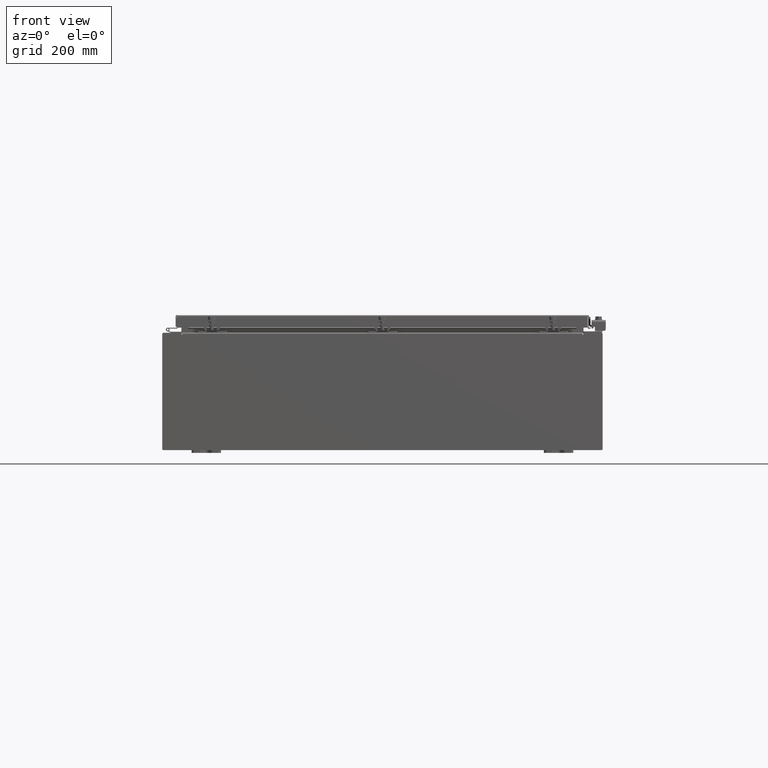
[diagram: clean part render]
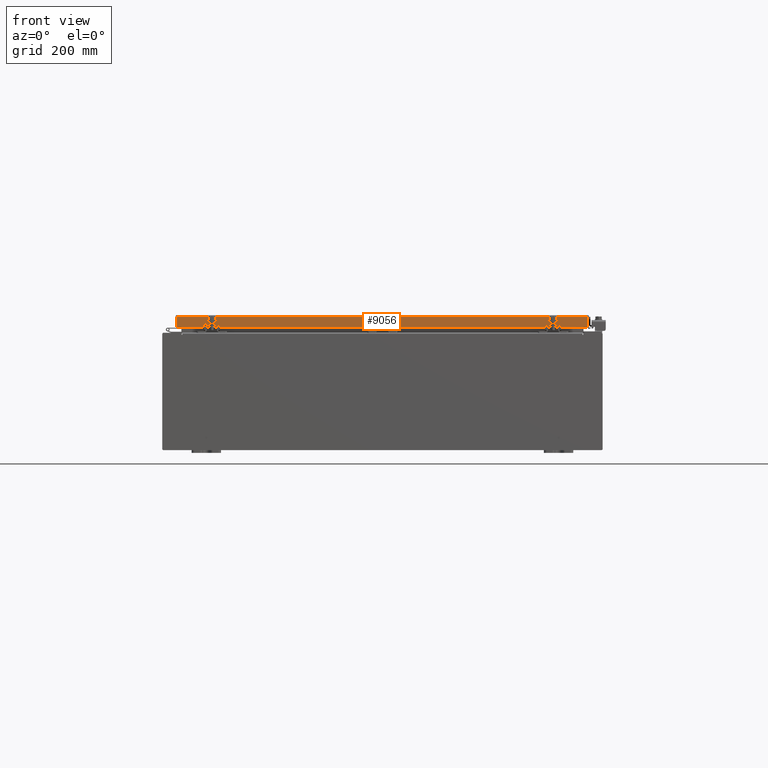
[diagram: same view with one face highlighted and labeled with its STEP entity id]
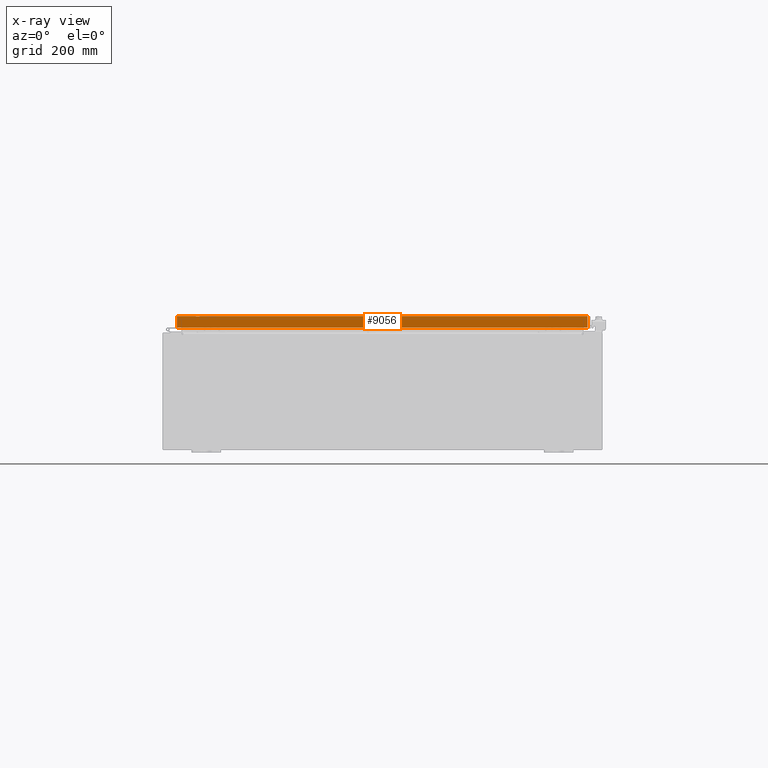
[diagram: x-ray of the same camera — body ghosted, the highlighted face saturated]
A machine part, front view. The second image highlights one B-rep face of the part: STEP entity #9056.
The next image is the same camera in x-ray: the body ghosted, the highlighted face saturated — about 0% of this face is hidden behind the body in this view.
In plain terms, the highlighted planar face has unit normal (-0, 1, -0).
Its self-contained STEP definition (entity closure, byte-faithful):
#1338 = ORIENTED_EDGE ( 'NONE', *, *, #31553, .F. ) ;
#1604 = LINE ( 'NONE', #2523, #3761 ) ;
#1785 = DIRECTION ( 'NONE',  ( 1.000000000000000000, 3.418789178101959700E-031, -9.318824769679573900E-046 ) ) ;
#2145 = CARTESIAN_POINT ( 'NONE',  ( 14.07799999999999400, -17.09400000000000100, -0.8499999999999999800 ) ) ;
#2523 = CARTESIAN_POINT ( 'NONE',  ( 13.98915786437626400, -17.09400000000000100, -0.07470000000000015500 ) ) ;
#2739 = FACE_OUTER_BOUND ( 'NONE', #14416, .T. ) ;
#3014 = VERTEX_POINT ( 'NONE', #12354 ) ;
#3099 = CARTESIAN_POINT ( 'NONE',  ( 13.23915786437626000, -17.09399999999999800, -0.8500000000000010900 ) ) ;
#3761 = VECTOR ( 'NONE', #22798, 39.37007874015748100 ) ;
#4720 = EDGE_CURVE ( 'NONE', #3014, #36221, #41726, .T. ) ;
#6116 = VERTEX_POINT ( 'NONE', #23261 ) ;
#6563 = ORIENTED_EDGE ( 'NONE', *, *, #28535, .F. ) ;
#7521 = CARTESIAN_POINT ( 'NONE',  ( 13.98915786437626500, -17.09400000000000100, -0.08770000000000026400 ) ) ;
#7548 = VERTEX_POINT ( 'NONE', #33281 ) ;
#8613 = PLANE ( 'NONE',  #12511 ) ;
#9056 = ADVANCED_FACE ( 'NONE', ( #2739 ), #8613, .F. ) ;
#9220 = LINE ( 'NONE', #2145, #26177 ) ;
#10578 = CARTESIAN_POINT ( 'NONE',  ( -13.23915786437627800, -17.09399999999999800, -0.8500000000000010900 ) ) ;
#11956 = CARTESIAN_POINT ( 'NONE',  ( 14.07799999999999400, -17.09400000000000100, -0.8499999999999999800 ) ) ;
#12354 = CARTESIAN_POINT ( 'NONE',  ( 13.98915786437626400, -17.09400000000000100, -0.8499999999999999800 ) ) ;
#12511 = AXIS2_PLACEMENT_3D ( 'NONE', #28721, #39043, #18859 ) ;
#14416 = EDGE_LOOP ( 'NONE', ( #6563, #14939, #33006, #36878, #21923, #1338 ) ) ;
#14735 = VECTOR ( 'NONE', #26735, 39.37007874015748100 ) ;
#14939 = ORIENTED_EDGE ( 'NONE', *, *, #29931, .T. ) ;
#15564 = EDGE_CURVE ( 'NONE', #17623, #7548, #9220, .T. ) ;
#15604 = DIRECTION ( 'NONE',  ( -1.000000000000000000, 4.379057701015054300E-047, 1.212817869044015600E-016 ) ) ;
#16828 = DIRECTION ( 'NONE',  ( 0.0000000000000000000, -2.818880942772360100E-015, -1.000000000000000000 ) ) ;
#17623 = VERTEX_POINT ( 'NONE', #10578 ) ;
#18782 = DIRECTION ( 'NONE',  ( -1.000000000000000000, 4.379057701015054300E-047, 1.212817869044015600E-016 ) ) ;
#18859 = DIRECTION ( 'NONE',  ( 0.0000000000000000000, 2.818880942772360100E-015, 1.000000000000000000 ) ) ;
#19270 = VECTOR ( 'NONE', #1785, 39.37007874015748100 ) ;
#20217 = CARTESIAN_POINT ( 'NONE',  ( -13.98915786437627600, -17.09400000000000100, 4.808052468849102900E-014 ) ) ;
#21923 = ORIENTED_EDGE ( 'NONE', *, *, #4720, .F. ) ;
#22798 = DIRECTION ( 'NONE',  ( -0.0000000000000000000, -2.818880942772360100E-015, -1.000000000000000000 ) ) ;
#23261 = CARTESIAN_POINT ( 'NONE',  ( -13.98915786437627800, -17.09400000000000100, -0.08770000000000026400 ) ) ;
#26177 = VECTOR ( 'NONE', #15604, 39.37007874015748100 ) ;
#26735 = DIRECTION ( 'NONE',  ( -1.000000000000000000, 0.0000000000000000000, 0.0000000000000000000 ) ) ;
#28535 = EDGE_CURVE ( 'NONE', #6116, #31845, #29285, .T. ) ;
#28721 = CARTESIAN_POINT ( 'NONE',  ( 0.0000000000000000000, -17.09400000000000100, 4.808052468849102900E-014 ) ) ;
#29285 = LINE ( 'NONE', #38861, #19270 ) ;
#29931 = EDGE_CURVE ( 'NONE', #6116, #7548, #40262, .T. ) ;
#31230 = CARTESIAN_POINT ( 'NONE',  ( 13.23915786437626000, -17.09399999999999800, -0.8500000000000010900 ) ) ;
#31553 = EDGE_CURVE ( 'NONE', #31845, #3014, #1604, .T. ) ;
#31845 = VERTEX_POINT ( 'NONE', #7521 ) ;
#33006 = ORIENTED_EDGE ( 'NONE', *, *, #15564, .F. ) ;
#33281 = CARTESIAN_POINT ( 'NONE',  ( -13.98915786437627800, -17.09400000000000100, -0.8499999999999966500 ) ) ;
#36221 = VERTEX_POINT ( 'NONE', #31230 ) ;
#36878 = ORIENTED_EDGE ( 'NONE', *, *, #40189, .F. ) ;
#38861 = CARTESIAN_POINT ( 'NONE',  ( 14.07799999999999400, -17.09400000000000100, -0.08770000000000026400 ) ) ;
#39043 = DIRECTION ( 'NONE',  ( -3.418789178101958800E-031, 1.000000000000000000, -2.818880942772360100E-015 ) ) ;
#40189 = EDGE_CURVE ( 'NONE', #36221, #17623, #40635, .T. ) ;
#40262 = LINE ( 'NONE', #20217, #41316 ) ;
#40635 = LINE ( 'NONE', #3099, #14735 ) ;
#41316 = VECTOR ( 'NONE', #16828, 39.37007874015748100 ) ;
#41726 = LINE ( 'NONE', #11956, #42767 ) ;
#42767 = VECTOR ( 'NONE', #18782, 39.37007874015748100 ) ;